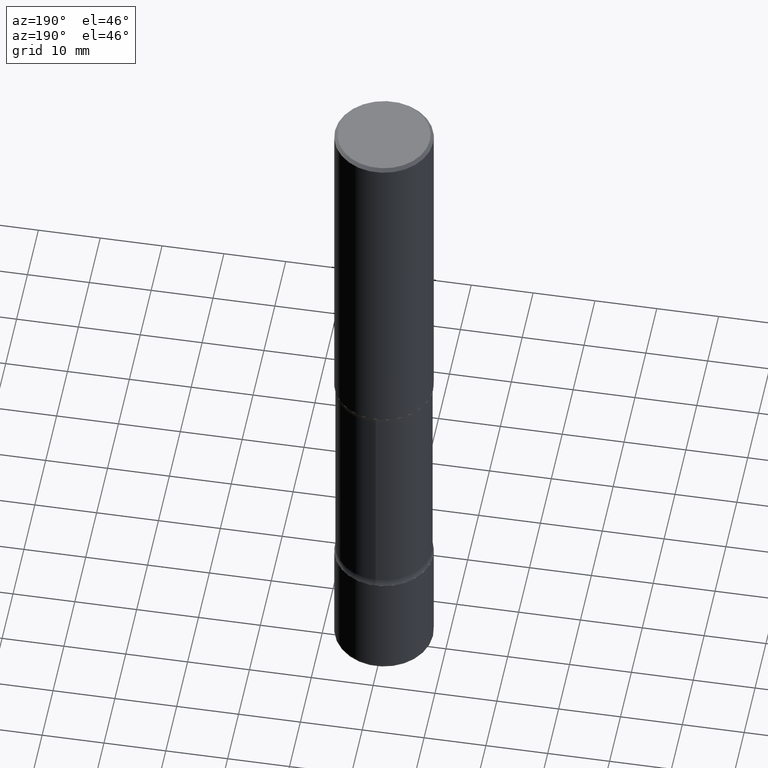
[diagram: clean part render]
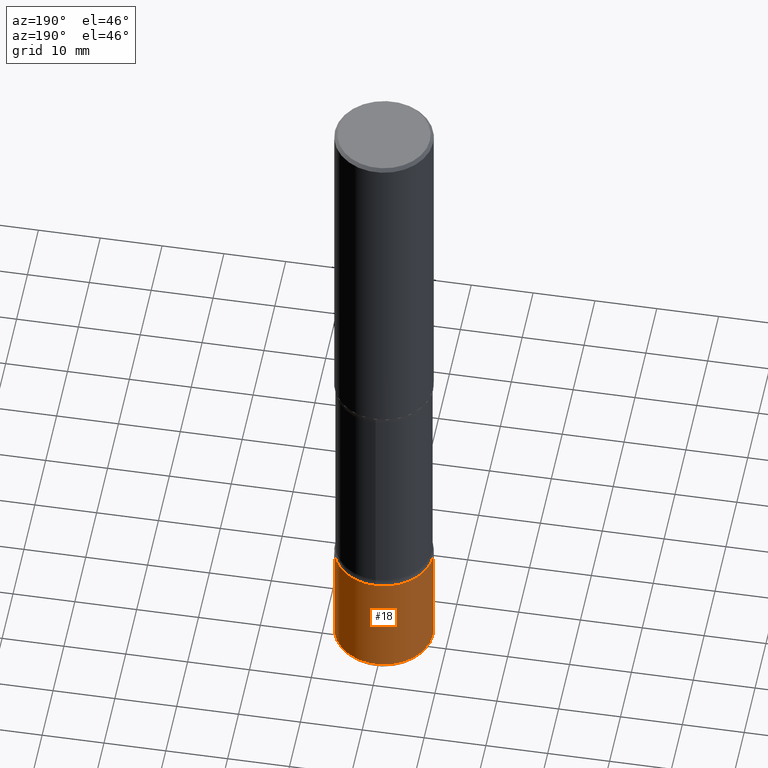
[diagram: same view with one face highlighted and labeled with its STEP entity id]
A machine part, auxiliary view. The second image highlights one B-rep face of the part: STEP entity #18.
In plain terms, the highlighted cylindrical surface (partial cylindrical patch) has radius 7.9375 mm, axis along (-0, 0, 1).
Its self-contained STEP definition (entity closure, byte-faithful):
#11 = DIRECTION ( 'NONE',  ( -2.445468806185136597E-29, 3.491481338843145583E-15, 1.000000000000000000 ) ) ;
#18 = ADVANCED_FACE ( 'NONE', ( #391 ), #185, .T. ) ;
#19 = ORIENTED_EDGE ( 'NONE', *, *, #31, .T. ) ;
#26 = EDGE_LOOP ( 'NONE', ( #19, #500, #464, #206 ) ) ;
#31 = EDGE_CURVE ( 'NONE', #266, #97, #465, .T. ) ;
#96 = CARTESIAN_POINT ( 'NONE',  ( 0.000000000000000000, 0.000000000000000000, 0.000000000000000000 ) ) ;
#97 = VERTEX_POINT ( 'NONE', #170 ) ;
#106 = CARTESIAN_POINT ( 'NONE',  ( -0.3125000000000001665, -1.211208484670079920E-14, -3.750000000000000000 ) ) ;
#133 = DIRECTION ( 'NONE',  ( -2.445468806185136877E-29, 3.491481338843145188E-15, 1.000000000000000000 ) ) ;
#156 = VECTOR ( 'NONE', #133, 39.37007874015748143 ) ;
#170 = CARTESIAN_POINT ( 'NONE',  ( -0.3125000000000001665, -1.335156072199011406E-14, -4.459999999999999964 ) ) ;
#179 = LINE ( 'NONE', #343, #156 ) ;
#184 = EDGE_CURVE ( 'NONE', #97, #188, #179, .T. ) ;
#185 = CYLINDRICAL_SURFACE ( 'NONE', #245, 0.3125000000000001665 ) ;
#188 = VERTEX_POINT ( 'NONE', #106 ) ;
#206 = ORIENTED_EDGE ( 'NONE', *, *, #232, .F. ) ;
#218 = LINE ( 'NONE', #392, #374 ) ;
#219 = CARTESIAN_POINT ( 'NONE',  ( 1.090679087558570850E-28, -1.557200677124043030E-14, -4.459999999999999964 ) ) ;
#222 = CARTESIAN_POINT ( 'NONE',  ( 0.3125000000000001665, -1.775418260801738707E-14, -4.459999999999999964 ) ) ;
#225 = DIRECTION ( 'NONE',  ( -2.445468806185136597E-29, 3.491481338843145583E-15, 1.000000000000000000 ) ) ;
#232 = EDGE_CURVE ( 'NONE', #266, #418, #218, .T. ) ;
#245 = AXIS2_PLACEMENT_3D ( 'NONE', #96, #225, #517 ) ;
#257 = AXIS2_PLACEMENT_3D ( 'NONE', #531, #487, #410 ) ;
#266 = VERTEX_POINT ( 'NONE', #222 ) ;
#282 = EDGE_CURVE ( 'NONE', #418, #188, #506, .T. ) ;
#343 = CARTESIAN_POINT ( 'NONE',  ( -0.3125000000000001665, 2.220446049250314264E-15, -1.537167215704658792E-29 ) ) ;
#349 = DIRECTION ( 'NONE',  ( -2.445468806185136877E-29, 3.491481338843145188E-15, 1.000000000000000000 ) ) ;
#362 = DIRECTION ( 'NONE',  ( 1.000000000000000000, -6.982962677686265133E-15, 0.000000000000000000 ) ) ;
#374 = VECTOR ( 'NONE', #349, 39.37007874015748143 ) ;
#391 = FACE_OUTER_BOUND ( 'NONE', #26, .T. ) ;
#392 = CARTESIAN_POINT ( 'NONE',  ( 0.3125000000000001665, -2.182175836776959530E-15, 1.523805242436230636E-29 ) ) ;
#410 = DIRECTION ( 'NONE',  ( 1.000000000000000000, -6.982962677686265133E-15, 0.000000000000000000 ) ) ;
#418 = VERTEX_POINT ( 'NONE', #433 ) ;
#433 = CARTESIAN_POINT ( 'NONE',  ( 0.3125000000000001665, -1.527523085743875734E-14, -3.750000000000000000 ) ) ;
#459 = AXIS2_PLACEMENT_3D ( 'NONE', #219, #11, #362 ) ;
#464 = ORIENTED_EDGE ( 'NONE', *, *, #282, .F. ) ;
#465 = CIRCLE ( 'NONE', #459, 0.3125000000000001665 ) ;
#487 = DIRECTION ( 'NONE',  ( -2.445468806185136597E-29, 3.491481338843145583E-15, 1.000000000000000000 ) ) ;
#500 = ORIENTED_EDGE ( 'NONE', *, *, #184, .T. ) ;
#506 = CIRCLE ( 'NONE', #257, 0.3125000000000001665 ) ;
#517 = DIRECTION ( 'NONE',  ( 1.000000000000000000, -6.982962677686266711E-15, 4.876176775795935232E-29 ) ) ;
#531 = CARTESIAN_POINT ( 'NONE',  ( 9.170508023194262238E-29, -1.309305502066179741E-14, -3.750000000000000000 ) ) ;